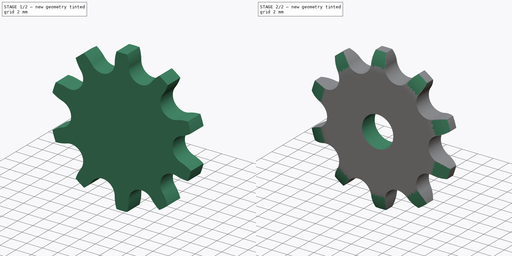
[diagram: build sequence overview — one tinted view per stage of 2, left to right]
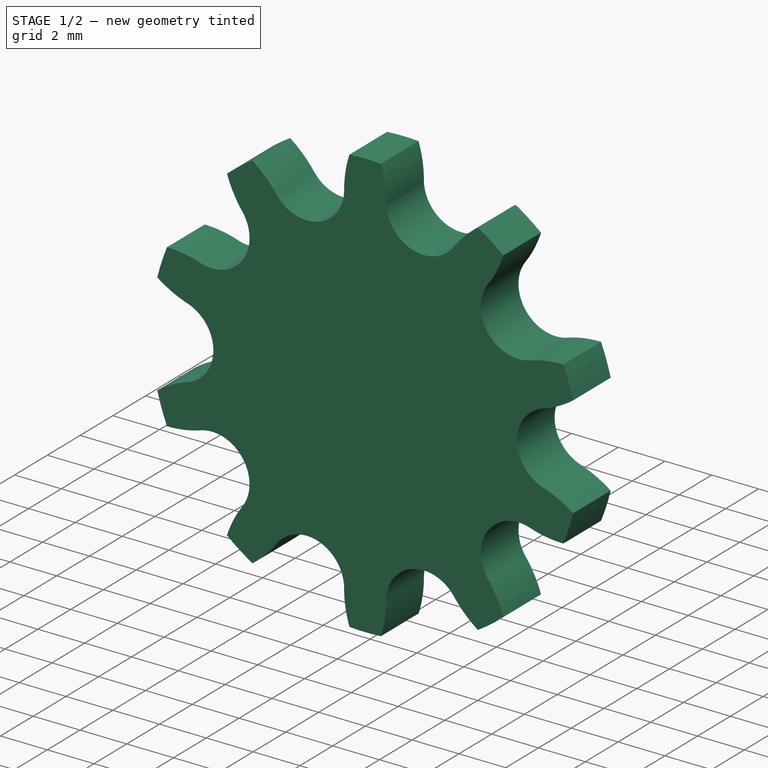
[diagram: stage 1 of 2 — iso view after this stage's code; geometry added in this stage tinted green]
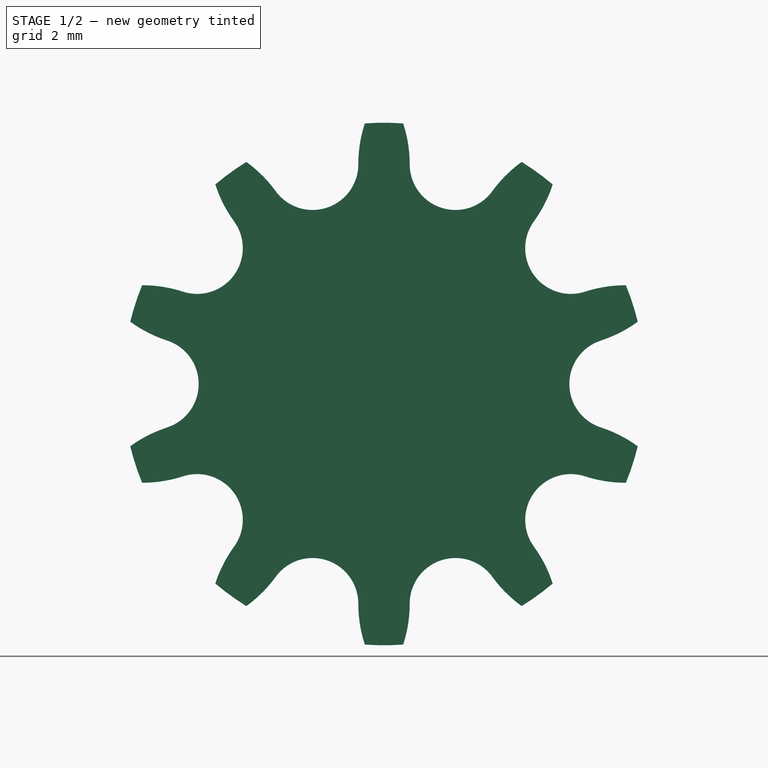
[diagram: stage 1 of 2 — front view after this stage's code; geometry added in this stage tinted green]
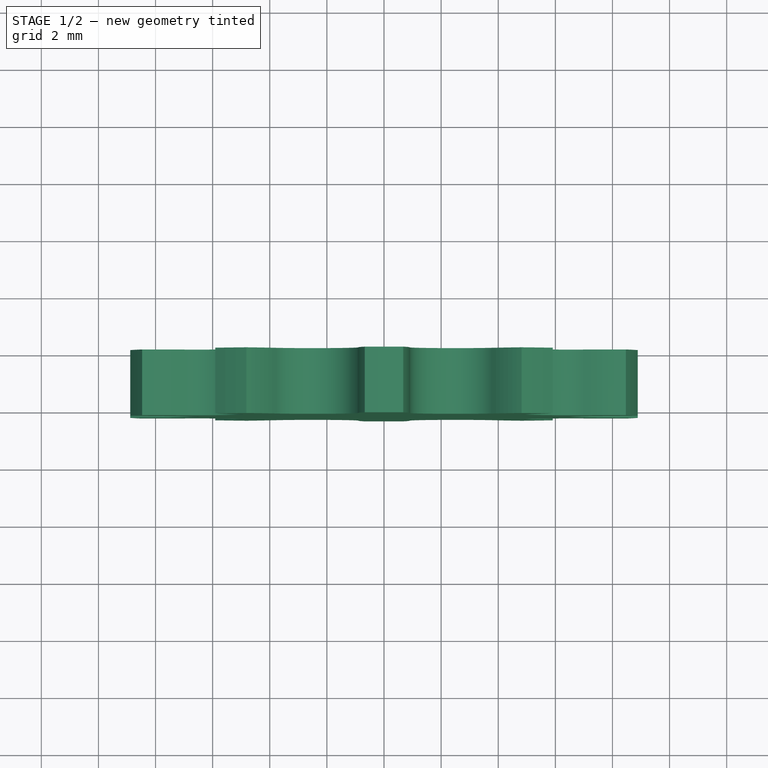
[diagram: stage 1 of 2 — top view after this stage's code; geometry added in this stage tinted green]
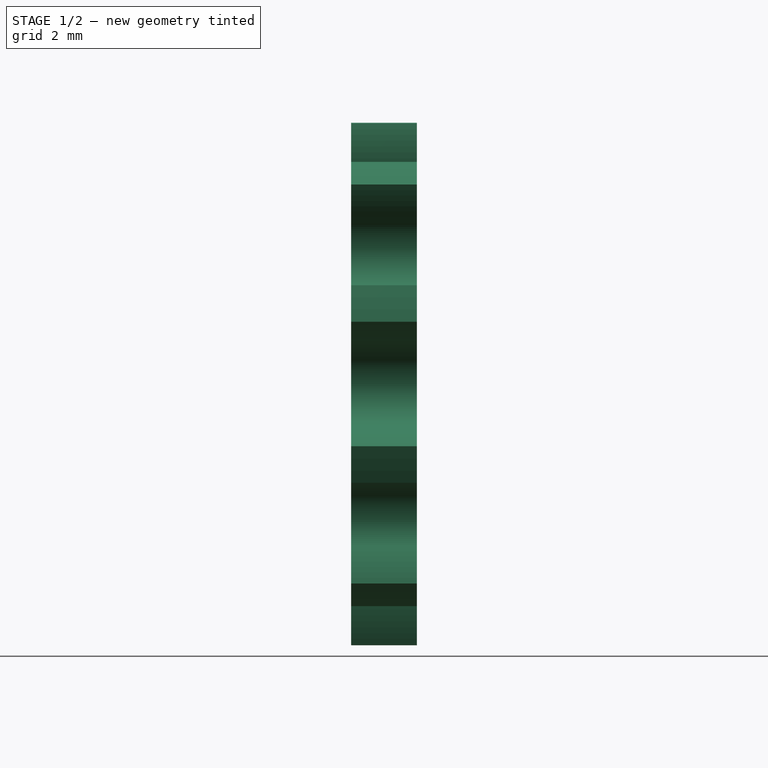
[diagram: stage 1 of 2 — right view after this stage's code; geometry added in this stage tinted green]
FCSTD DOCUMENT  (FreeCAD 0.20R29603 (Git))
Label: Plate Wheel simplex 5x2,5
License: Attribution 4.0 International (CC BY 4.0)
LicenseURL: http://creativecommons.org/licenses/by/4.0/
objects: Sketcher::SketchObject×3, Spreadsheet::Sheet×1, PartDesign::Pad×1, PartDesign::PolarPattern×1, PartDesign::Groove×1, PartDesign::Pocket×1, PartDesign::Body×1
note: 11 computed .brp shape members not serialized (recipe doc carries the construction recipe); baked Part::Feature solids carry a one-line shape summary decoded from their .brp

FEATURE [Spreadsheet::Sheet] Spreadsheet  label="Data"
  TeethNumber = 2
  cells = B1=P (Pitch); C1=Wc (Chain width); D1=Dr (Roller diameter); E1=Tr (Tooth radius); F1=Rw (Radius width); G1=Wt (Tooth width); H1=z (Number of teeth); I1=De (External Diameter); J1=Dp (Pitch diameter); K1=D (Hole diameter); L1=H (Total height); A2==hiddenref(.TeethNumber.String); B2(P)==.B5; C2(Wc)==.C5; D2(Dr)==.D5; E2(Tr)==.E5; F2(Rw)==.F5; G2(Wt)==.G5; H2(z)==.H5; I2(De)==.I5; J2(Dp)==.J5; K2(D)==.K5; L2(H)==.L5; A3=Z 8; B3=5; C3=2.5; D3=3.2; E3=5; F3=0.6; G3=2.3; H3=8; I3=15.2; J3=13.06; K3=4; L3=2.3; A4=Z 9; B4=5; C4=2.5; D4=3.2; E4=5; F4=0.6; G4=2.3; H4=9; I4=16.8; J4=14.62; K4=4; L4=2.3; A5=Z 10; B5=5; C5=2.5; D5=3.2; E5=5; F5=0.6; G5=2.3; H5=10; I5=18.3; J5=16.18; K5=4; L5=2.3; A6=Z 11; B6=5; C6=2.5; D6=3.2; E6=5; F6=0.6; G6=2.3; H6=11; I6=19.9; J6=17.75; K6=5; L6=2.3; A7=Z 12; B7=5; C7=2.5; D7=3.2; E7=5; F7=0.6; G7=2.3; H7=12; I7=21.5; J7=19.32; K7=5; L7=2.3; A8=Z 13; B8=5; C8=2.5; D8=3.2; E8=5; F8=0.6; G8=2.3; H8=13; I8=23; J8=20.89; K8=5; L8=2.3; A9=Z 14; B9=5; C9=2.5; D9=3.2; E9=5; F9=0.6; G9=2.3; H9=14; I9=24.6; J9=22.47; K9=5; L9=2.3; A10=Z 15; B10=5; C10=2.5; D10=3.2; E10=5; F10=0.6; G10=2.3; H10=15; I10=26.2; J10=24.04; K10=5; L10=2.3; A11=Z 16; B11=5; C11=2.5; D11=3.2; E11=5; F11=0.6; G11=2.3; H11=16; I11=27.8; J11=25.63; K11=6; L11=2.3; A12=Z 17; B12=5; C12=2.5; D12=3.2; E12=5; F12=0.6; G12=2.3; H12=17; I12=29.4; J12=27.2; K12=6; L12=2.3; A13=Z 18; B13=5; C13=2.5; D13=3.2; E13=5; F13=0.6; G13=2.3; H13=18; I13=30.9; J13=28.79; K13=6; L13=2.3; A14=Z 19; B14=5; C14=2.5; D14=3.2; E14=5; F14=0.6; G14=2.3; H14=19; I14=32.5; J14=30.38; K14=6; L14=2.3; A15=Z 20; B15=5; C15=2.5; D15=3.2; E15=5; F15=0.6; G15=2.3; H15=20; I15=34.1; J15=31.96; K15=6; L15=2.3; A16=Z 21; B16=5; C16=2.5; D16=3.2; E16=5; F16=0.6; G16=2.3; H16=21; I16=35.7; J16=33.54; K16=8; L16=2.3; A17=Z 22; B17=5; C17=2.5; D17=3.2; E17=5; F17=0.6; G17=2.3; H17=22; I17=37.3; +339 more cells
  expr: .TeethNumber.Enum = cells[<<A3:|>>]
  expr: .cells.Bind.B2.ZZ2 = tuple(.cells; <<B>> + str(hiddenref(TeethNumber) + 3); <<ZZ>> + str(hiddenref(TeethNumber) + 3))
FEATURE [Sketcher::SketchObject] Sketch  label="Tooth sketch"
  FullyConstrained = true
  MapMode = 5
  Placement = pos=(0,0,0) rot=(1,0,0;1.5708rad)
  Support = -> [XZ_Plane]
  expr: .Constraints.De = <<Data>>.De
  expr: .Constraints.Di = <<Data>>.Dp - <<Data>>.Dr
  expr: .Constraints.Dp = <<Data>>.Dp
  expr: .Constraints.Dr = <<Data>>.Dr
  expr: .Constraints.P = Spreadsheet.P
  expr: .Constraints.Ru = 0.12 * <<Data>>.Dr * (<<Data>>.z + 2)
  sketch-geometry (16):
    g0: Circle CenterX=0 CenterY=0 CenterZ=0 NormalX=0 NormalY=0 NormalZ=1 AngleXU=0 Radius=8.09
    g1: LineSegment StartX=-2.5 StartY=7.69403 StartZ=0 EndX=2.5 EndY=7.69403 EndZ=0
    g2: Circle CenterX=-2.5 CenterY=7.69403 CenterZ=0 NormalX=0 NormalY=0 NormalZ=1 AngleXU=0 Radius=1.6
    g3: Circle CenterX=2.5 CenterY=7.69403 CenterZ=0 NormalX=0 NormalY=0 NormalZ=1 AngleXU=0 Radius=1.6
    g4: LineSegment StartX=0 StartY=0 StartZ=0 EndX=-2.5 EndY=7.69403 EndZ=0
    g5: LineSegment StartX=0 StartY=0 StartZ=0 EndX=2.5 EndY=7.69403 EndZ=0
    g6: Circle CenterX=0 CenterY=0 CenterZ=0 NormalX=0 NormalY=0 NormalZ=1 AngleXU=0 Radius=6.49
    g7: Circle CenterX=0 CenterY=0 CenterZ=0 NormalX=0 NormalY=0 NormalZ=1 AngleXU=0 Radius=9.15
    g8: ArcOfCircle CenterX=-2.5 CenterY=7.69403 CenterZ=0 NormalX=0 NormalY=0 NormalZ=1 AngleXU=0 Radius=1.6 StartAngle=5.02656 EndAngle=6.28319
    g9: ArcOfCircle CenterX=3.708 CenterY=7.69403 CenterZ=0 NormalX=0 NormalY=0 NormalZ=1 AngleXU=0 Radius=4.608 StartAngle=2.82577 EndAngle=3.14159
    g10: ArcOfCircle CenterX=2.5 CenterY=7.69403 CenterZ=0 NormalX=0 NormalY=0 NormalZ=1 AngleXU=0 Radius=1.6 StartAngle=3.14159 EndAngle=4.39822
    g11: ArcOfCircle CenterX=-3.708 CenterY=7.69403 CenterZ=0 NormalX=0 NormalY=0 NormalZ=1 AngleXU=0 Radius=4.608 StartAngle=0 EndAngle=0.315826
    g12: ArcOfCircle CenterX=0 CenterY=0 CenterZ=0 NormalX=0 NormalY=0 NormalZ=1 AngleXU=0 Radius=9.15 StartAngle=1.49728 EndAngle=1.64431
    g13: LineSegment StartX=-2.00556 StartY=6.17234 StartZ=0 EndX=-2.00556 EndY=0 EndZ=0
    g14: LineSegment StartX=2.00556 StartY=6.17234 StartZ=0 EndX=2.00556 EndY=0 EndZ=0
    g15: LineSegment StartX=-2.00556 StartY=0 StartZ=0 EndX=2.00556 EndY=0 EndZ=0
  constraints (42):
    c: Coincident(g0,g-1)
    c: Diameter(g0) = 16.18  'Dp'
    c: PointOnObject(g1,g0)
    c: PointOnObject(g1,g0)
    c: Horizontal(g1)
    c: DistanceX(g1,g1) = 5  'P'
    c: Coincident(g2,g1)
    c: Coincident(g3,g1)
    c: Equal(g2,g3)
    c: Diameter(g2) = 3.2  'Dr'
    c: Coincident(g4,g-1)
    c: Coincident(g4,g1)
    c: Coincident(g5,g-1)
    c: Coincident(g6,g-1)
    c: Coincident(g7,g-1)
    c: Diameter(g7) = 18.3  'De'
    c: Coincident(g8,g1)
    c: PointOnObject(g8,g4)
    c: PointOnObject(g8,g2)
    c: PointOnObject(g8,g1)
    c: PointOnObject(g9,g7)
    c: Tangent(g9,g8) = 1.5708
    c: Radius(g9) = 4.608  'Ru'
    c: Coincident(g10,g1)
    c: PointOnObject(g10,g5)
    c: PointOnObject(g10,g1)
    c: Equal(g9,g11)
    c: Coincident(g12,g-1)
    c: Coincident(g12,g9)
    c: Coincident(g12,g11)
    c: Coincident(g5,g10)
    c: Equal(g10,g8)
    c: Tangent(g11,g10) = 1.5708
    c: Coincident(g13,g8)
    c: Vertical(g13)
    c: Coincident(g14,g10)
    c: Vertical(g14)
    c: Coincident(g15,g13)
    c: Coincident(g15,g14)
    c: Horizontal(g15)
    c: PointOnObject(g12,g15)
    c: Diameter(g6) = 12.98  'Di'
FEATURE [PartDesign::Pad] Pad  label="Tooth"
  Direction = (0,-1,-2e-16)
  Length = 2.3
  Length2 = 100
  Placement = pos=(0,0,0) rot=(1,0,0;1.5708rad)
  Profile = -> Sketch
  Type = 0
  expr: Length = <<Data>>.Wt
FEATURE [Sketcher::SketchObject] Sketch001  label="Radius"
  FullyConstrained = true
  MapMode = 5
  Placement = pos=(0,0,0) rot=(0.57735,0.57735,0.57735;2.0944rad)
  Support = -> [YZ_Plane]
  expr: .Constraints.Re = <<Data>>.De / 2
  expr: .Constraints.Rw = <<Data>>.Rw
  expr: .Constraints.Tr = <<Data>>.Tr
  expr: .Constraints.Wt = <<Data>>.Wt
  sketch-geometry (7):
    g0: LineSegment StartX=-1.7 StartY=9.15 StartZ=0 EndX=-2.3 EndY=9.15 EndZ=0
    g1: LineSegment StartX=-2.3 StartY=9.15 StartZ=0 EndX=-2.3 EndY=6.77513 EndZ=0
    g2: LineSegment StartX=-0.6 StartY=9.15 StartZ=0 EndX=-4.53e-14 EndY=9.15 EndZ=0
    g3: LineSegment StartX=-4.53e-14 StartY=9.15 StartZ=0 EndX=-4.53e-14 EndY=6.77513 EndZ=0
    g4: LineSegment StartX=-1.7 StartY=9.15 StartZ=0 EndX=-0.6 EndY=9.15 EndZ=0
    g5: ArcOfCircle CenterX=2.7 CenterY=6.77513 CenterZ=0 NormalX=0 NormalY=0 NormalZ=1 AngleXU=0 Radius=5 StartAngle=2.64666 EndAngle=3.14159
    g6: ArcOfCircle CenterX=-5 CenterY=6.77513 CenterZ=0 NormalX=0 NormalY=0 NormalZ=1 AngleXU=0 Radius=5 StartAngle=-1.69e-14 EndAngle=0.494934
  constraints (21):
    c: Horizontal(g0)
    c: DistanceX(g0,g0) = 0.6  'Rw'
    c: Coincident(g1,g0)
    c: Vertical(g1)
    c: Horizontal(g2)
    c: Coincident(g3,g2)
    c: Vertical(g3)
    c: Equal(g0,g2)
    c: Equal(g1,g3)
    c: DistanceX(g0,g2) = 2.3  'Wt'
    c: Coincident(g4,g2)
    c: Horizontal(g4)
    c: PointOnObject(g2,g-2)
    c: Coincident(g4,g0)
    c: Coincident(g5,g0)
    c: Coincident(g6,g2)
    c: Coincident(g6,g3)
    c: DistanceY(g2) = 9.15  'Re'
    c: Radius(g5) = 5  'Tr'
    c: Equal(g5,g6)
    c: Tangent(g1,g5) = -1.5708
FEATURE [PartDesign::PolarPattern] PolarPattern  label="Teeth"
  Angle = 360
  Axis = -> Y_Axis
  BaseFeature = -> Pad
  Occurrences = 10
  Originals = -> [Pad]
  Placement = pos=(0,0,0) rot=(1,0,0;1.5708rad)
  Refine = true
  expr: Occurrences = <<Data>>.z
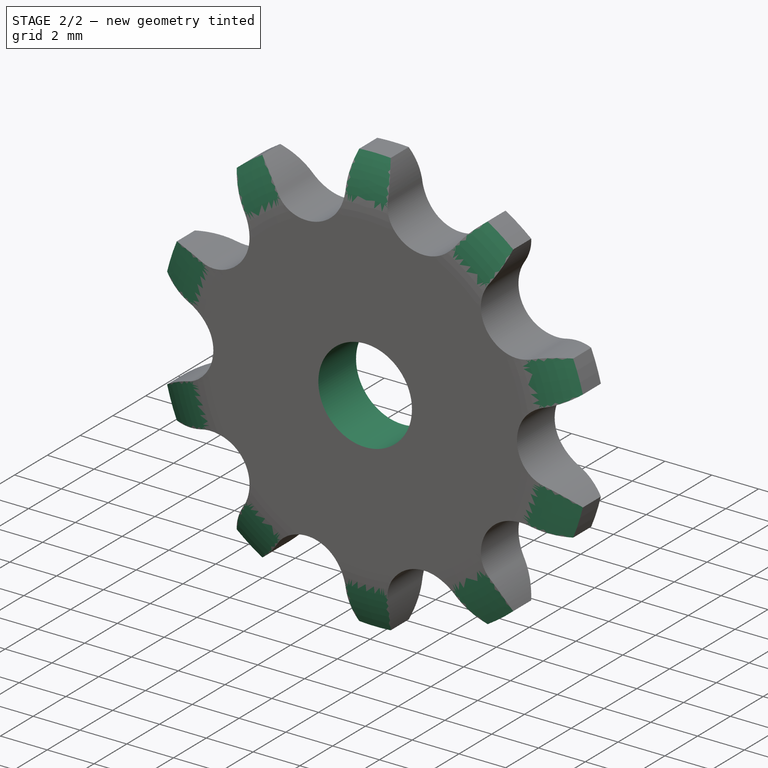
[diagram: stage 2 of 2 — iso view after this stage's code; geometry added in this stage tinted green]
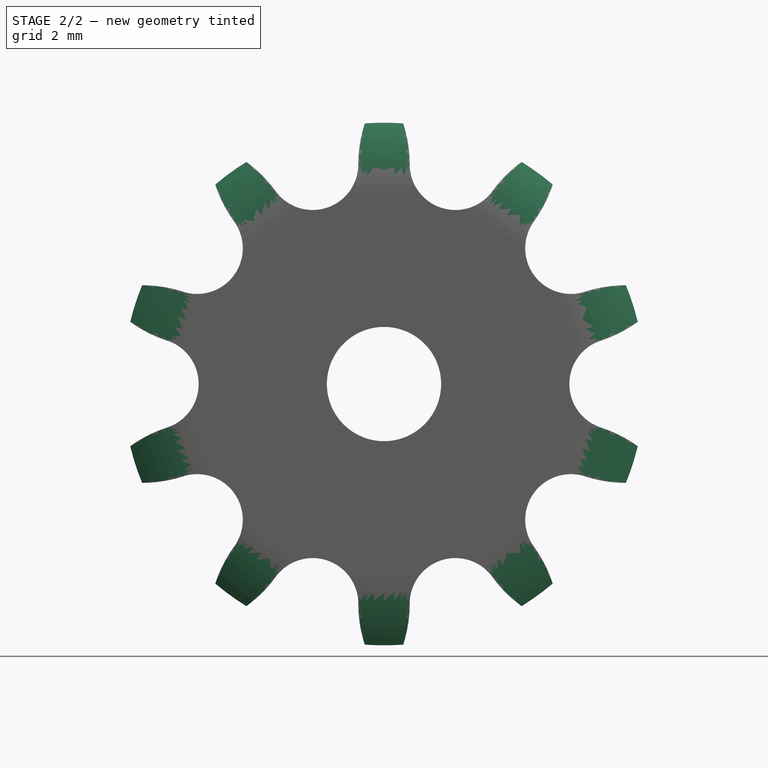
[diagram: stage 2 of 2 — front view after this stage's code; geometry added in this stage tinted green]
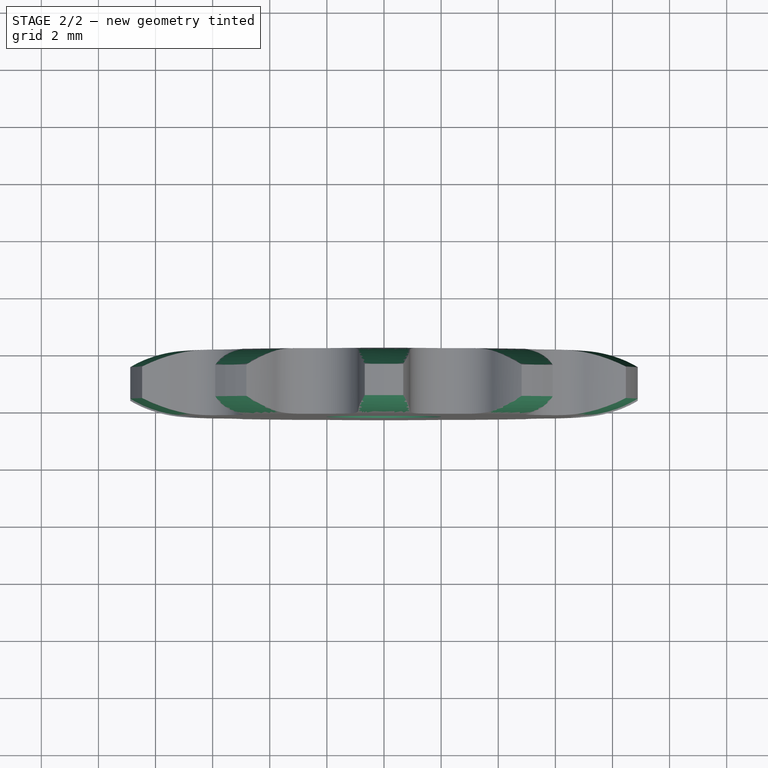
[diagram: stage 2 of 2 — top view after this stage's code; geometry added in this stage tinted green]
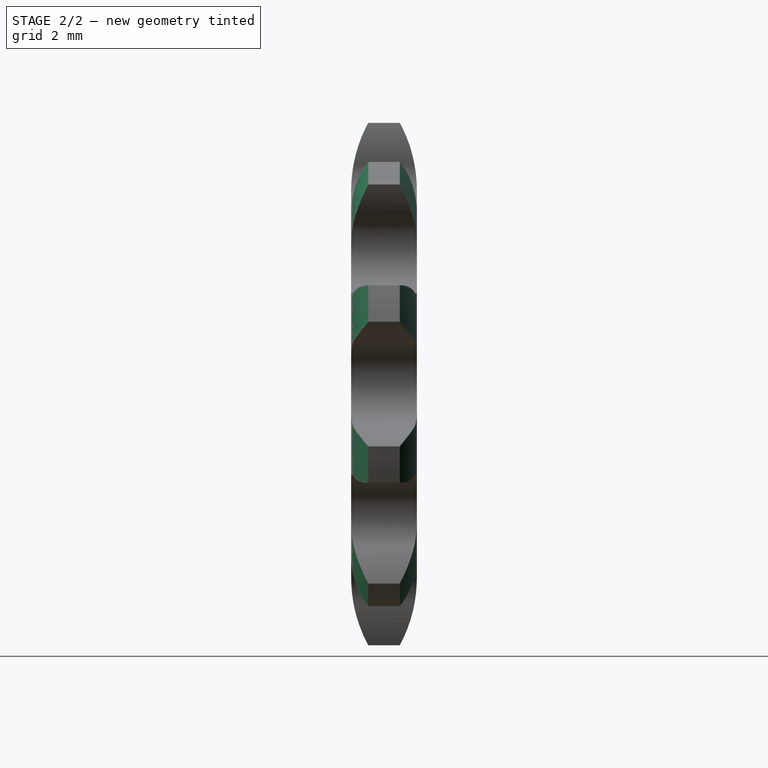
[diagram: stage 2 of 2 — right view after this stage's code; geometry added in this stage tinted green]
FEATURE [PartDesign::Groove] Groove  label="Teeth Radius"
  Angle = 360
  Axis = (1e-16,1,-1e-16)
  Base = (0,0,0)
  BaseFeature = -> PolarPattern
  Placement = pos=(0,0,0) rot=(1,0,0;1.5708rad)
  Profile = -> Sketch001
  ReferenceAxis = -> Y_Axis
  Reversed = true
FEATURE [Sketcher::SketchObject] Sketch002  label="Hole Sketch"
  FullyConstrained = true
  MapMode = 5
  Placement = pos=(0,0,0) rot=(1,0,0;1.5708rad)
  Support = -> [XZ_Plane]
  expr: .Constraints.D = <<Data>>.D
  sketch-geometry (1):
    g0: Circle CenterX=0 CenterY=0 CenterZ=0 NormalX=0 NormalY=0 NormalZ=1 AngleXU=0 Radius=2
  constraints (2):
    c: Coincident(g0,g-1)
    c: Diameter(g0) = 4  'D'
FEATURE [PartDesign::Pocket] Pocket  label="Hole"
  BaseFeature = -> Groove
  Direction = (0,1,2e-16)
  Length = 5
  Length2 = 100
  Placement = pos=(0,0,0) rot=(1,0,0;1.5708rad)
  Profile = -> Sketch002
  Reversed = true
  Type = 1
FEATURE [PartDesign::Body] Body  label="Plate Wheel simplex 5x2,5"
  Group = -> [Sketch,Pad,PolarPattern,Sketch001,Groove,Sketch002,Pocket]
  Origin = -> Origin
  Tip = -> Pocket
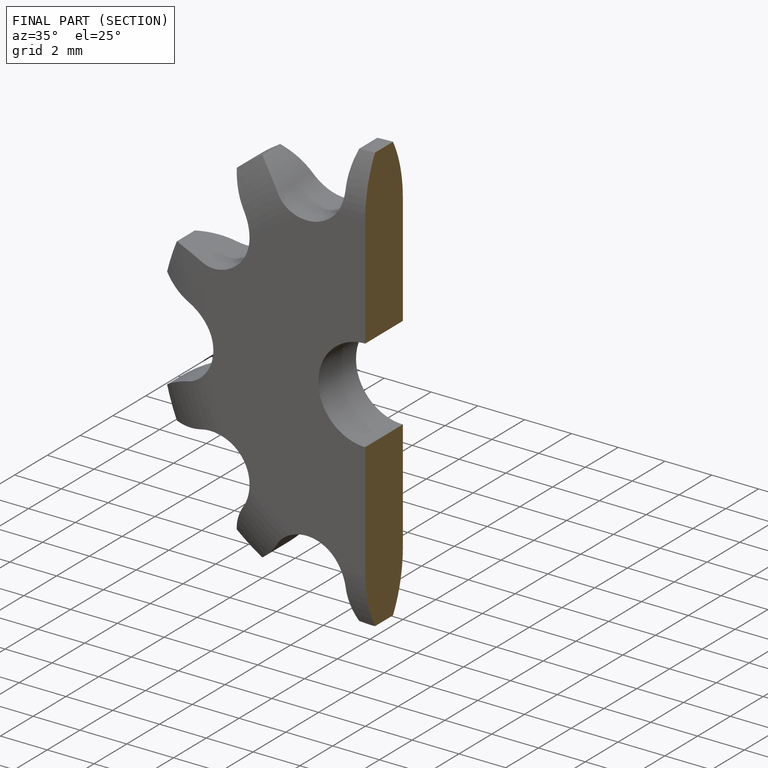
[diagram: finished part — half-section view (interior)]
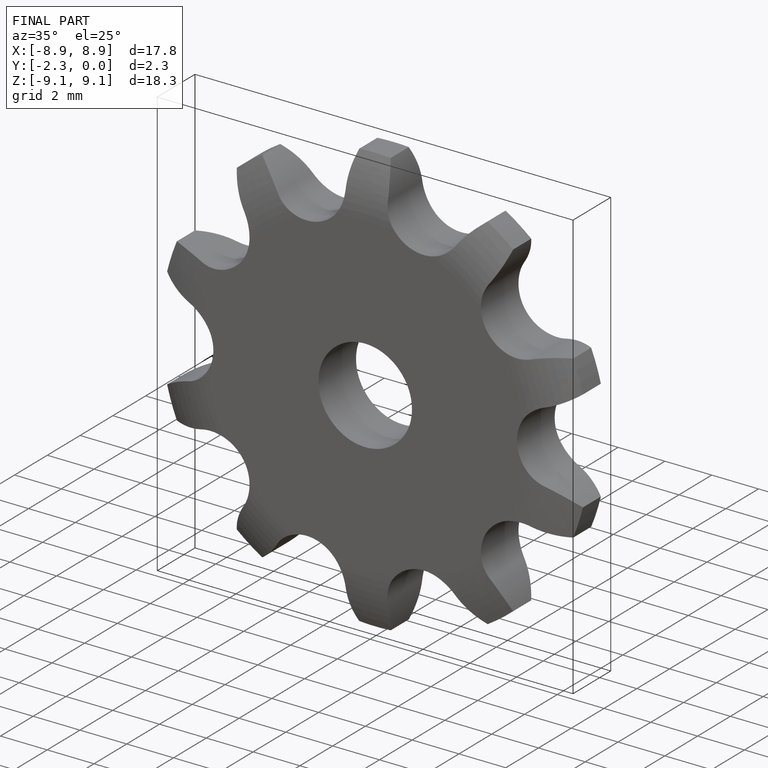
[diagram: finished part — iso view with bounding-box wireframe]
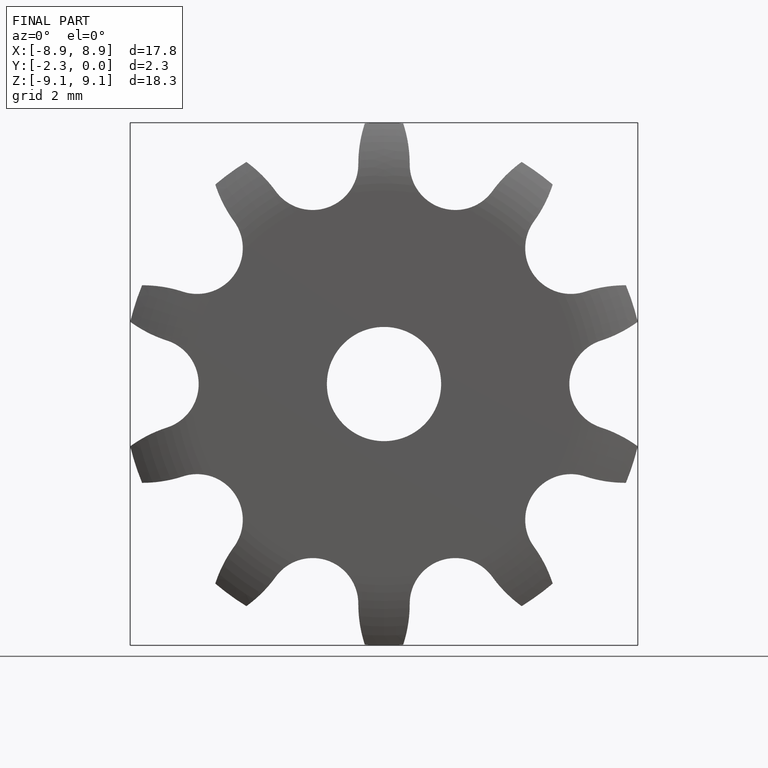
[diagram: finished part — front view with bounding-box wireframe]
